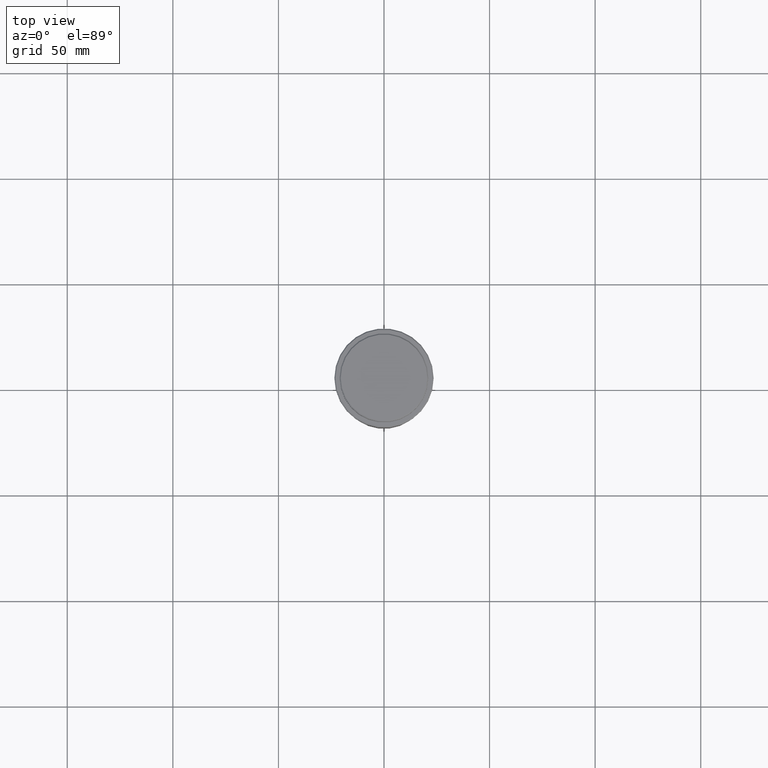
[diagram: clean part render]
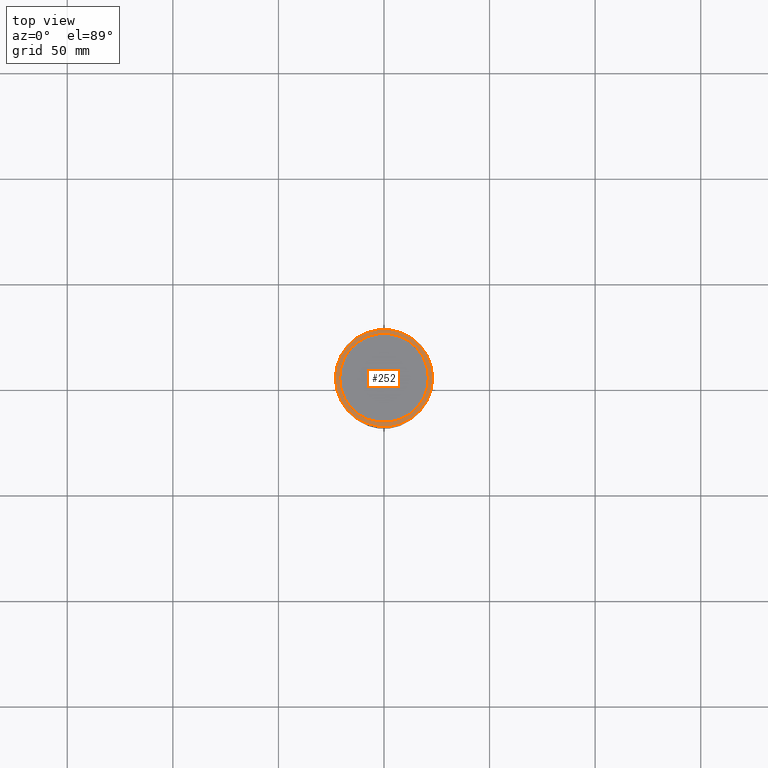
[diagram: same view with one face highlighted and labeled with its STEP entity id]
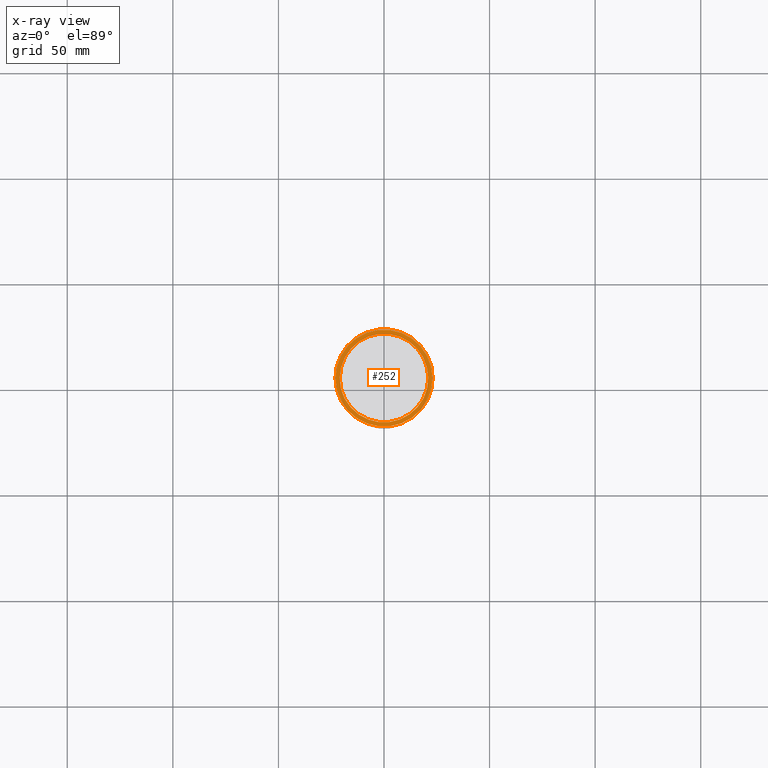
[diagram: x-ray of the same camera — body ghosted, the highlighted face saturated]
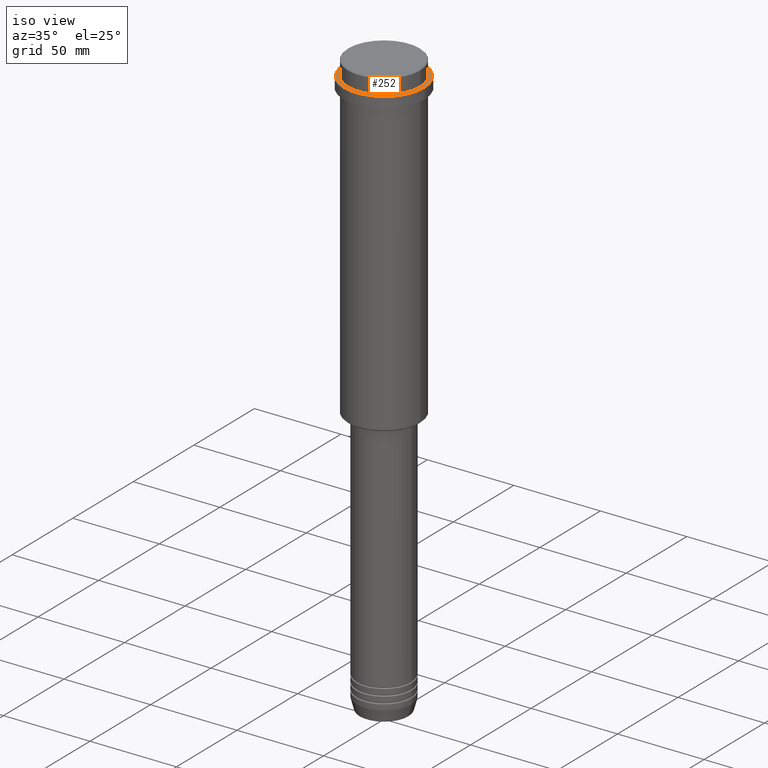
[diagram: same view with one face highlighted and labeled with its STEP entity id]
A machine part, top view. The second image highlights one B-rep face of the part: STEP entity #252.
The next image is the same camera in x-ray: the body ghosted, the highlighted face saturated — about 0% of this face is hidden behind the body in this view.
A second angle (iso view) of the same face is appended — the face is thin or edge-on in the first view.
In plain terms, the highlighted planar face has unit normal (0, -0, 1).
Its self-contained STEP definition (entity closure, byte-faithful):
#72 = DIRECTION ( 'NONE',  ( 0.000000000000000000, 0.000000000000000000, -1.000000000000000000 ) ) ;
#116 = CIRCLE ( 'NONE', #435, 23.00000000000002487 ) ;
#140 = ORIENTED_EDGE ( 'NONE', *, *, #494, .T. ) ;
#157 = EDGE_CURVE ( 'NONE', #448, #1007, #269, .T. ) ;
#170 = CARTESIAN_POINT ( 'NONE',  ( 0.000000000000000000, 0.000000000000000000, -9.000000000000001776 ) ) ;
#179 = CARTESIAN_POINT ( 'NONE',  ( 0.000000000000000000, 0.000000000000000000, -9.000000000000001776 ) ) ;
#220 = CARTESIAN_POINT ( 'NONE',  ( -20.99999999999999289, 2.571758278209440872E-15, -9.000000000000001776 ) ) ;
#252 = ADVANCED_FACE ( 'NONE', ( #257, #802 ), #1244, .T. ) ;
#257 = FACE_OUTER_BOUND ( 'NONE', #683, .T. ) ;
#269 = CIRCLE ( 'NONE', #1065, 23.00000000000002487 ) ;
#292 = DIRECTION ( 'NONE',  ( -0.000000000000000000, -0.000000000000000000, 1.000000000000000000 ) ) ;
#314 = CARTESIAN_POINT ( 'NONE',  ( 23.00000000000002487, 2.847303808017597717E-15, -9.000000000000001776 ) ) ;
#321 = AXIS2_PLACEMENT_3D ( 'NONE', #891, #1329, #353 ) ;
#336 = CARTESIAN_POINT ( 'NONE',  ( 0.000000000000000000, 0.000000000000000000, -9.000000000000001776 ) ) ;
#342 = AXIS2_PLACEMENT_3D ( 'NONE', #170, #1049, #594 ) ;
#352 = DIRECTION ( 'NONE',  ( -0.000000000000000000, -0.000000000000000000, 1.000000000000000000 ) ) ;
#353 = DIRECTION ( 'NONE',  ( 1.000000000000000000, 0.000000000000000000, 0.000000000000000000 ) ) ;
#435 = AXIS2_PLACEMENT_3D ( 'NONE', #179, #292, #1154 ) ;
#448 = VERTEX_POINT ( 'NONE', #938 ) ;
#482 = EDGE_LOOP ( 'NONE', ( #140, #1375 ) ) ;
#485 = EDGE_CURVE ( 'NONE', #1062, #926, #948, .T. ) ;
#494 = EDGE_CURVE ( 'NONE', #926, #1062, #525, .T. ) ;
#525 = CIRCLE ( 'NONE', #1321, 20.99999999999999289 ) ;
#544 = EDGE_CURVE ( 'NONE', #1007, #448, #116, .T. ) ;
#545 = ORIENTED_EDGE ( 'NONE', *, *, #157, .T. ) ;
#565 = DIRECTION ( 'NONE',  ( 1.000000000000000000, 0.000000000000000000, 0.000000000000000000 ) ) ;
#594 = DIRECTION ( 'NONE',  ( 1.000000000000000000, 0.000000000000000000, 0.000000000000000000 ) ) ;
#604 = DIRECTION ( 'NONE',  ( 1.000000000000000000, 0.000000000000000000, 0.000000000000000000 ) ) ;
#608 = CARTESIAN_POINT ( 'NONE',  ( 0.000000000000000000, 0.000000000000000000, -9.000000000000001776 ) ) ;
#683 = EDGE_LOOP ( 'NONE', ( #545, #1208 ) ) ;
#802 = FACE_BOUND ( 'NONE', #482, .T. ) ;
#815 = CARTESIAN_POINT ( 'NONE',  ( 20.99999999999999289, 0.000000000000000000, -9.000000000000001776 ) ) ;
#891 = CARTESIAN_POINT ( 'NONE',  ( 0.000000000000000000, 20.49999999999999645, -9.000000000000001776 ) ) ;
#926 = VERTEX_POINT ( 'NONE', #815 ) ;
#938 = CARTESIAN_POINT ( 'NONE',  ( -23.00000000000002487, 0.000000000000000000, -9.000000000000001776 ) ) ;
#948 = CIRCLE ( 'NONE', #342, 20.99999999999999289 ) ;
#1007 = VERTEX_POINT ( 'NONE', #314 ) ;
#1049 = DIRECTION ( 'NONE',  ( 0.000000000000000000, 0.000000000000000000, -1.000000000000000000 ) ) ;
#1062 = VERTEX_POINT ( 'NONE', #220 ) ;
#1065 = AXIS2_PLACEMENT_3D ( 'NONE', #336, #352, #565 ) ;
#1154 = DIRECTION ( 'NONE',  ( 1.000000000000000000, 0.000000000000000000, 0.000000000000000000 ) ) ;
#1208 = ORIENTED_EDGE ( 'NONE', *, *, #544, .T. ) ;
#1244 = PLANE ( 'NONE',  #321 ) ;
#1321 = AXIS2_PLACEMENT_3D ( 'NONE', #608, #72, #604 ) ;
#1329 = DIRECTION ( 'NONE',  ( 0.000000000000000000, -0.000000000000000000, 1.000000000000000000 ) ) ;
#1375 = ORIENTED_EDGE ( 'NONE', *, *, #485, .T. ) ;